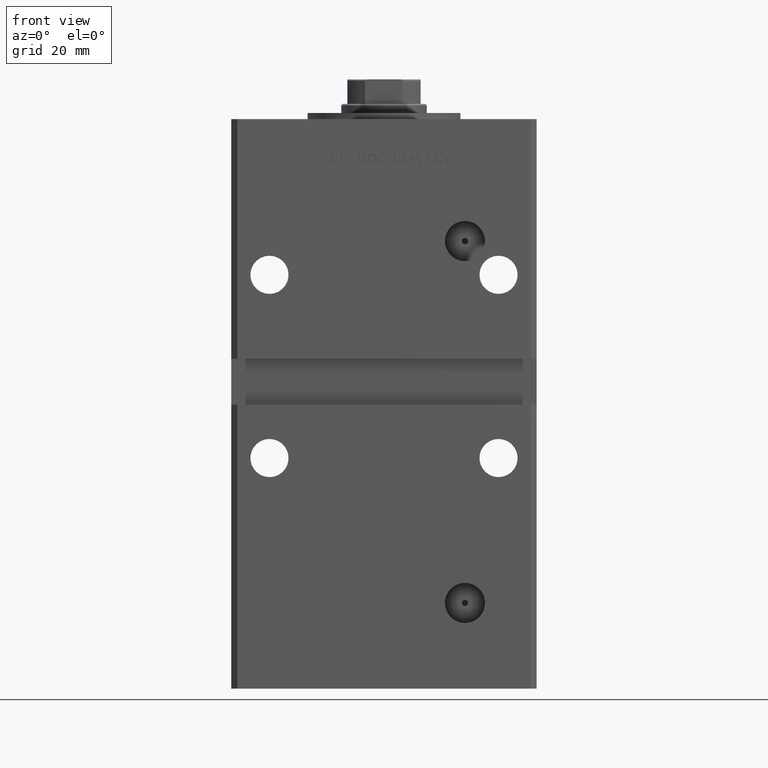
[diagram: clean part render]
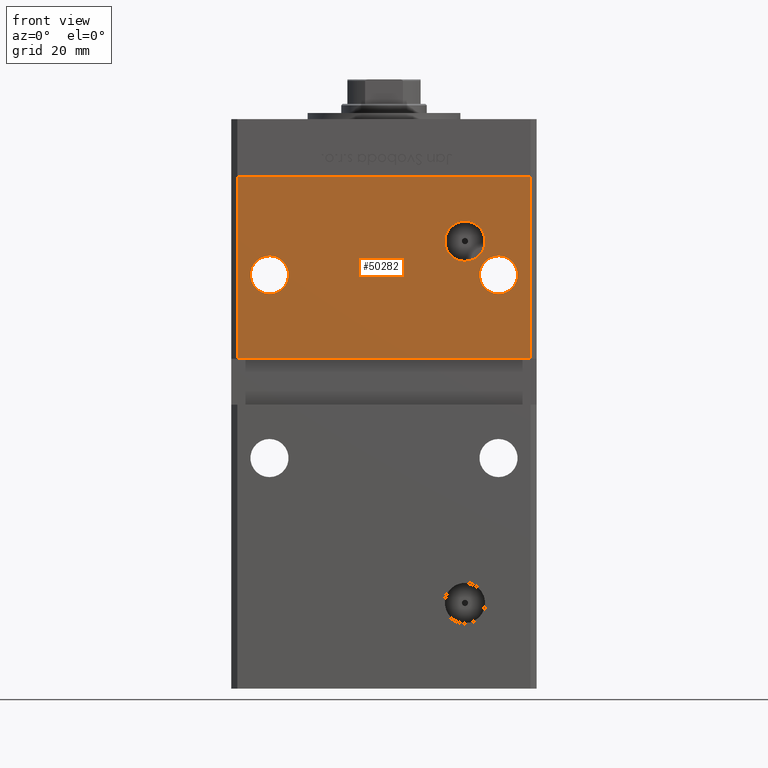
[diagram: same view with one face highlighted and labeled with its STEP entity id]
A machine part, front view. The second image highlights one B-rep face of the part: STEP entity #50282.
In plain terms, the highlighted planar face has unit normal (0, 1, 0).
Its self-contained STEP definition (entity closure, byte-faithful):
#80 = AXIS2_PLACEMENT_3D ( 'NONE', #31575, #15948, #32359 ) ;
#105 = VECTOR ( 'NONE', #16146, 1000.000000000000000 ) ;
#602 = DIRECTION ( 'NONE',  ( 0.000000000000000000, 0.000000000000000000, 1.000000000000000000 ) ) ;
#809 = CIRCLE ( 'NONE', #30881, 6.579999999999988525 ) ;
#1382 = DIRECTION ( 'NONE',  ( 0.000000000000000000, 1.000000000000000000, 0.000000000000000000 ) ) ;
#1454 = EDGE_CURVE ( 'NONE', #29805, #40458, #809, .T. ) ;
#2543 = DIRECTION ( 'NONE',  ( 0.000000000000000000, 0.000000000000000000, 1.000000000000000000 ) ) ;
#2718 = EDGE_LOOP ( 'NONE', ( #53107, #5766, #35964, #33237 ) ) ;
#2892 = LINE ( 'NONE', #40001, #19272 ) ;
#3071 = DIRECTION ( 'NONE',  ( 0.000000000000000000, 1.000000000000000000, 0.000000000000000000 ) ) ;
#4399 = VECTOR ( 'NONE', #11983, 1000.000000000000000 ) ;
#4587 = LINE ( 'NONE', #45712, #105 ) ;
#4897 = AXIS2_PLACEMENT_3D ( 'NONE', #20447, #45155, #30386 ) ;
#5766 = ORIENTED_EDGE ( 'NONE', *, *, #7011, .F. ) ;
#6046 = VERTEX_POINT ( 'NONE', #39687 ) ;
#6525 = EDGE_CURVE ( 'NONE', #19749, #40053, #4587, .T. ) ;
#7011 = EDGE_CURVE ( 'NONE', #40053, #32617, #48803, .T. ) ;
#7600 = FACE_BOUND ( 'NONE', #27290, .T. ) ;
#8107 = CARTESIAN_POINT ( 'NONE',  ( -47.99999999999998579, -43.50000000000000000, 148.5000000000000000 ) ) ;
#8377 = LINE ( 'NONE', #8107, #42224 ) ;
#9608 = AXIS2_PLACEMENT_3D ( 'NONE', #23788, #3071, #2543 ) ;
#11983 = DIRECTION ( 'NONE',  ( -1.000000000000000000, -0.000000000000000000, -0.000000000000000000 ) ) ;
#12252 = CARTESIAN_POINT ( 'NONE',  ( -49.99999999999998579, -43.50000000000000000, 89.00000000000000000 ) ) ;
#12769 = CARTESIAN_POINT ( 'NONE',  ( 26.49999999999997513, -43.50000000000000000, 134.0800000000000125 ) ) ;
#15202 = EDGE_CURVE ( 'NONE', #25039, #32617, #2892, .T. ) ;
#15398 = FACE_OUTER_BOUND ( 'NONE', #2718, .T. ) ;
#15415 = ORIENTED_EDGE ( 'NONE', *, *, #40283, .T. ) ;
#15801 = CARTESIAN_POINT ( 'NONE',  ( 37.50000000000000000, -43.50000000000000000, 116.4999999999999858 ) ) ;
#15948 = DIRECTION ( 'NONE',  ( -0.000000000000000000, 1.000000000000000000, -0.000000000000000000 ) ) ;
#16133 = CARTESIAN_POINT ( 'NONE',  ( 37.50000000000000000, -43.50000000000000000, 122.7500000000000000 ) ) ;
#16146 = DIRECTION ( 'NONE',  ( -0.000000000000000000, -0.000000000000000000, -1.000000000000000000 ) ) ;
#16578 = CARTESIAN_POINT ( 'NONE',  ( -47.99999999999998579, -43.50000000000000000, 148.5000000000000000 ) ) ;
#17544 = CARTESIAN_POINT ( 'NONE',  ( 26.49999999999997513, -43.50000000000000000, 120.9200000000000159 ) ) ;
#18396 = EDGE_LOOP ( 'NONE', ( #15415, #48615 ) ) ;
#19272 = VECTOR ( 'NONE', #19313, 1000.000000000000000 ) ;
#19313 = DIRECTION ( 'NONE',  ( -0.000000000000000000, -0.000000000000000000, -1.000000000000000000 ) ) ;
#19583 = DIRECTION ( 'NONE',  ( 0.000000000000000000, 0.000000000000000000, 1.000000000000000000 ) ) ;
#19749 = VERTEX_POINT ( 'NONE', #29150 ) ;
#20216 = DIRECTION ( 'NONE',  ( 1.000000000000000000, 0.000000000000000000, 0.000000000000000000 ) ) ;
#20447 = CARTESIAN_POINT ( 'NONE',  ( -37.50000000000000000, -43.50000000000000000, 116.4999999999999858 ) ) ;
#20730 = CARTESIAN_POINT ( 'NONE',  ( -47.99999999999998579, -43.50000000000000000, 89.00000000000000000 ) ) ;
#21951 = EDGE_CURVE ( 'NONE', #6046, #27738, #33089, .T. ) ;
#22133 = EDGE_CURVE ( 'NONE', #27738, #6046, #23649, .T. ) ;
#23649 = CIRCLE ( 'NONE', #42502, 6.250000000000005329 ) ;
#23788 = CARTESIAN_POINT ( 'NONE',  ( -37.50000000000000000, -43.50000000000000000, 116.4999999999999858 ) ) ;
#23887 = DIRECTION ( 'NONE',  ( 0.000000000000000000, 1.000000000000000000, 0.000000000000000000 ) ) ;
#25039 = VERTEX_POINT ( 'NONE', #16578 ) ;
#27257 = DIRECTION ( 'NONE',  ( 0.000000000000000000, -0.000000000000000000, 1.000000000000000000 ) ) ;
#27290 = EDGE_LOOP ( 'NONE', ( #49914, #45356 ) ) ;
#27738 = VERTEX_POINT ( 'NONE', #16133 ) ;
#27821 = CARTESIAN_POINT ( 'NONE',  ( 26.49999999999997513, -43.50000000000000000, 127.5000000000000000 ) ) ;
#28314 = DIRECTION ( 'NONE',  ( 0.000000000000000000, 1.000000000000000000, 0.000000000000000000 ) ) ;
#28436 = ORIENTED_EDGE ( 'NONE', *, *, #29467, .T. ) ;
#28615 = VERTEX_POINT ( 'NONE', #47992 ) ;
#29150 = CARTESIAN_POINT ( 'NONE',  ( 47.99999999999998579, -43.50000000000000000, 148.5000000000000000 ) ) ;
#29467 = EDGE_CURVE ( 'NONE', #28615, #46359, #52131, .T. ) ;
#29736 = CARTESIAN_POINT ( 'NONE',  ( 47.99999999999998579, -43.50000000000000000, 89.00000000000000000 ) ) ;
#29805 = VERTEX_POINT ( 'NONE', #12769 ) ;
#30386 = DIRECTION ( 'NONE',  ( 0.000000000000000000, 0.000000000000000000, 1.000000000000000000 ) ) ;
#30881 = AXIS2_PLACEMENT_3D ( 'NONE', #27821, #36390, #39910 ) ;
#31575 = CARTESIAN_POINT ( 'NONE',  ( 26.49999999999997513, -43.50000000000000000, 127.5000000000000000 ) ) ;
#32196 = ORIENTED_EDGE ( 'NONE', *, *, #42825, .T. ) ;
#32303 = EDGE_LOOP ( 'NONE', ( #32196, #28436 ) ) ;
#32346 = CARTESIAN_POINT ( 'NONE',  ( -47.99999999999998579, -43.50000000000000000, 148.5000000000000000 ) ) ;
#32359 = DIRECTION ( 'NONE',  ( 0.000000000000000000, 0.000000000000000000, -1.000000000000000000 ) ) ;
#32617 = VERTEX_POINT ( 'NONE', #20730 ) ;
#33089 = CIRCLE ( 'NONE', #46795, 6.250000000000005329 ) ;
#33237 = ORIENTED_EDGE ( 'NONE', *, *, #43234, .F. ) ;
#35964 = ORIENTED_EDGE ( 'NONE', *, *, #6525, .F. ) ;
#36390 = DIRECTION ( 'NONE',  ( -0.000000000000000000, 1.000000000000000000, -0.000000000000000000 ) ) ;
#38211 = CARTESIAN_POINT ( 'NONE',  ( 37.50000000000000000, -43.50000000000000000, 116.4999999999999858 ) ) ;
#39604 = PLANE ( 'NONE',  #49195 ) ;
#39660 = CIRCLE ( 'NONE', #9608, 6.250000000000005329 ) ;
#39687 = CARTESIAN_POINT ( 'NONE',  ( 37.50000000000000000, -43.50000000000000000, 110.2499999999999858 ) ) ;
#39910 = DIRECTION ( 'NONE',  ( 0.000000000000000000, 0.000000000000000000, -1.000000000000000000 ) ) ;
#40001 = CARTESIAN_POINT ( 'NONE',  ( -47.99999999999998579, -43.50000000000000000, 148.5000000000000000 ) ) ;
#40053 = VERTEX_POINT ( 'NONE', #29736 ) ;
#40283 = EDGE_CURVE ( 'NONE', #40458, #29805, #48997, .T. ) ;
#40458 = VERTEX_POINT ( 'NONE', #17544 ) ;
#41611 = CARTESIAN_POINT ( 'NONE',  ( -37.50000000000000000, -43.50000000000000000, 122.7500000000000000 ) ) ;
#42224 = VECTOR ( 'NONE', #20216, 1000.000000000000000 ) ;
#42502 = AXIS2_PLACEMENT_3D ( 'NONE', #15801, #23887, #19583 ) ;
#42825 = EDGE_CURVE ( 'NONE', #46359, #28615, #39660, .T. ) ;
#43234 = EDGE_CURVE ( 'NONE', #25039, #19749, #8377, .T. ) ;
#45155 = DIRECTION ( 'NONE',  ( 0.000000000000000000, 1.000000000000000000, 0.000000000000000000 ) ) ;
#45356 = ORIENTED_EDGE ( 'NONE', *, *, #21951, .T. ) ;
#45712 = CARTESIAN_POINT ( 'NONE',  ( 47.99999999999998579, -43.50000000000000000, 148.5000000000000000 ) ) ;
#46359 = VERTEX_POINT ( 'NONE', #41611 ) ;
#46795 = AXIS2_PLACEMENT_3D ( 'NONE', #38211, #1382, #602 ) ;
#47992 = CARTESIAN_POINT ( 'NONE',  ( -37.50000000000000000, -43.50000000000000000, 110.2499999999999858 ) ) ;
#48456 = FACE_BOUND ( 'NONE', #18396, .T. ) ;
#48615 = ORIENTED_EDGE ( 'NONE', *, *, #1454, .T. ) ;
#48803 = LINE ( 'NONE', #12252, #4399 ) ;
#48997 = CIRCLE ( 'NONE', #80, 6.579999999999988525 ) ;
#49195 = AXIS2_PLACEMENT_3D ( 'NONE', #32346, #28314, #27257 ) ;
#49914 = ORIENTED_EDGE ( 'NONE', *, *, #22133, .T. ) ;
#50282 = ADVANCED_FACE ( 'NONE', ( #7600, #52223, #15398, #48456 ), #39604, .F. ) ;
#52131 = CIRCLE ( 'NONE', #4897, 6.250000000000005329 ) ;
#52223 = FACE_BOUND ( 'NONE', #32303, .T. ) ;
#53107 = ORIENTED_EDGE ( 'NONE', *, *, #15202, .T. ) ;